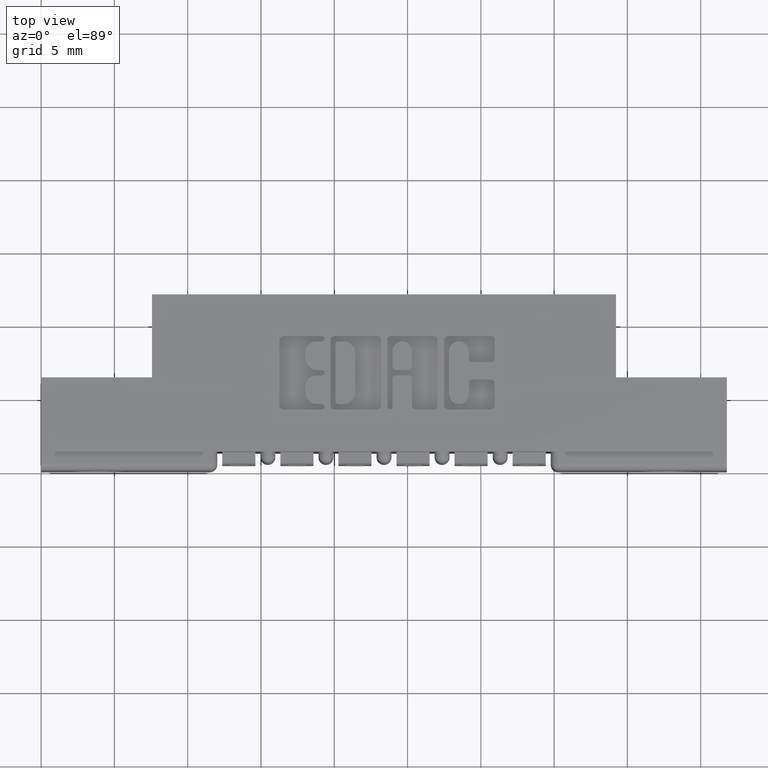
[diagram: clean part render]
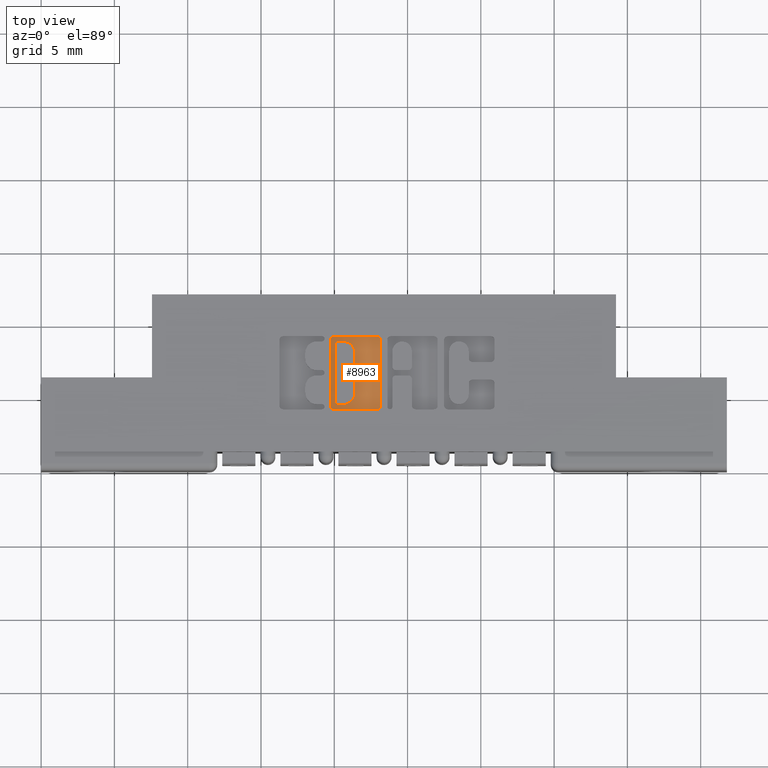
[diagram: same view with one face highlighted and labeled with its STEP entity id]
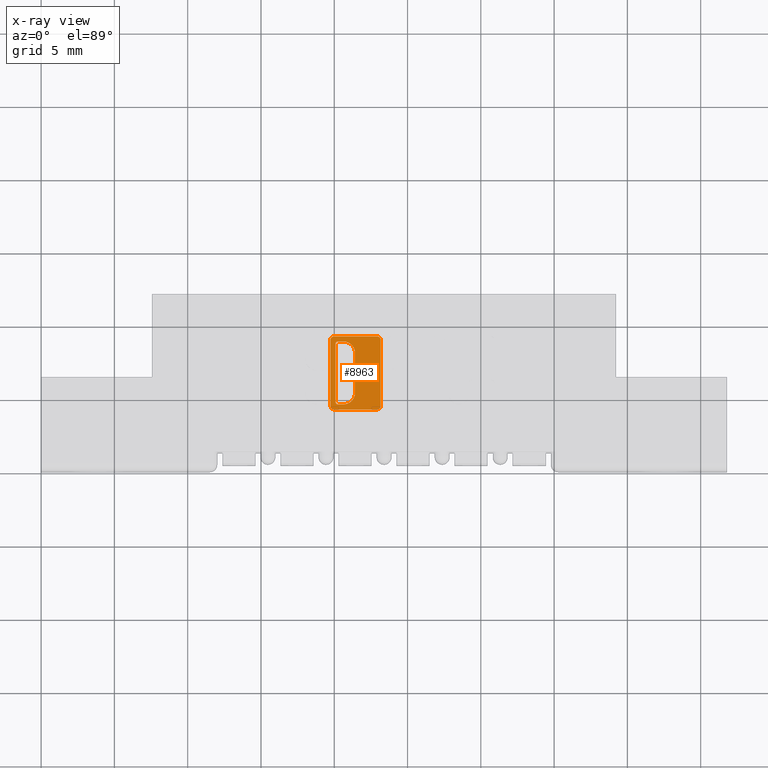
[diagram: x-ray of the same camera — body ghosted, the highlighted face saturated]
A machine part, top view. The second image highlights one B-rep face of the part: STEP entity #8963.
The next image is the same camera in x-ray: the body ghosted, the highlighted face saturated — about 0% of this face is hidden behind the body in this view.
In plain terms, the highlighted planar face has unit normal (0, 0, 1).
Its self-contained STEP definition (entity closure, byte-faithful):
#2 = DIRECTION ( 'NONE',  ( 1.000000000000000000, 0.0000000000000000000, 0.0000000000000000000 ) ) ;
#16 = CARTESIAN_POINT ( 'NONE',  ( 0.9124112885716693100, 0.3503410318342100000, -0.01000000000000000000 ) ) ;
#124 = CARTESIAN_POINT ( 'NONE',  ( 0.7906969780444990100, 0.3395437946100566300, -0.01000000000000000000 ) ) ;
#275 = VECTOR ( 'NONE', #2, 39.37007874015748100 ) ;
#326 = DIRECTION ( 'NONE',  ( 1.000000000000000000, 0.0000000000000000000, 0.0000000000000000000 ) ) ;
#403 = CARTESIAN_POINT ( 'NONE',  ( 0.0000000000000000000, 0.1775852362473141800, -0.01000000000000000000 ) ) ;
#615 = CARTESIAN_POINT ( 'NONE',  ( 0.0000000000000000000, 0.0000000000000000000, -0.01000000000000000000 ) ) ;
#718 = VECTOR ( 'NONE', #326, 39.37007874015748100 ) ;
#721 = CARTESIAN_POINT ( 'NONE',  ( 0.7906969780444990100, 0.0000000000000000000, -0.01000000000000000000 ) ) ;
#876 = CARTESIAN_POINT ( 'NONE',  ( 0.7769550397591695700, 0.0000000000000000000, -0.01000000000000000000 ) ) ;
#943 = LINE ( 'NONE', #5259, #9670 ) ;
#1005 = CARTESIAN_POINT ( 'NONE',  ( 0.8118006689826720000, 0.3150046191005524400, -0.01000000000000000000 ) ) ;
#1063 = DIRECTION ( 'NONE',  ( -0.0000000000000000000, 0.0000000000000000000, 1.000000000000000000 ) ) ;
#1186 = DIRECTION ( 'NONE',  ( -0.0000000000000000000, 0.0000000000000000000, 1.000000000000000000 ) ) ;
#1394 = VERTEX_POINT ( 'NONE', #6409 ) ;
#1452 = CARTESIAN_POINT ( 'NONE',  ( 0.9025956183678624000, 0.1736589681657899100, -0.01000000000000000000 ) ) ;
#1730 = DIRECTION ( 'NONE',  ( -0.0000000000000000000, 0.0000000000000000000, 1.000000000000000000 ) ) ;
#1762 = AXIS2_PLACEMENT_3D ( 'NONE', #615, #7387, #6460 ) ;
#1784 = CIRCLE ( 'NONE', #10209, 0.009815670203840902800 ) ;
#1856 = AXIS2_PLACEMENT_3D ( 'NONE', #4385, #6063, #6143 ) ;
#1870 = CARTESIAN_POINT ( 'NONE',  ( 0.9025956183678963700, 0.3601567020380510000, -0.01000000000000000000 ) ) ;
#2005 = ORIENTED_EDGE ( 'NONE', *, *, #7590, .T. ) ;
#2058 = CARTESIAN_POINT ( 'NONE',  ( 0.7975679471871667300, 0.3395437946100566300, -0.01000000000000000000 ) ) ;
#2303 = ORIENTED_EDGE ( 'NONE', *, *, #2328, .T. ) ;
#2305 = CIRCLE ( 'NONE', #7582, 0.009815670203806891800 ) ;
#2328 = EDGE_CURVE ( 'NONE', #3954, #4146, #1784, .T. ) ;
#2420 = EDGE_CURVE ( 'NONE', #5281, #7856, #2305, .T. ) ;
#2463 = CARTESIAN_POINT ( 'NONE',  ( 0.7867707099630104600, 0.3601567020380510000, -0.01000000000000000000 ) ) ;
#2471 = CIRCLE ( 'NONE', #1856, 0.03141014465217017300 ) ;
#2560 = ORIENTED_EDGE ( 'NONE', *, *, #2907, .T. ) ;
#2722 = CARTESIAN_POINT ( 'NONE',  ( 0.9124112885716693100, 0.0000000000000000000, -0.01000000000000000000 ) ) ;
#2766 = ORIENTED_EDGE ( 'NONE', *, *, #5186, .F. ) ;
#2779 = CARTESIAN_POINT ( 'NONE',  ( 0.8432108136348439600, 0.0000000000000000000, -0.01000000000000000000 ) ) ;
#2882 = CIRCLE ( 'NONE', #7380, 0.03141014465217194900 ) ;
#2907 = EDGE_CURVE ( 'NONE', #3097, #3075, #8331, .T. ) ;
#2975 = LINE ( 'NONE', #403, #8912 ) ;
#3075 = VERTEX_POINT ( 'NONE', #3686 ) ;
#3097 = VERTEX_POINT ( 'NONE', #10406 ) ;
#3201 = CARTESIAN_POINT ( 'NONE',  ( 0.8432108136348439600, 0.3150046191005524400, -0.01000000000000000000 ) ) ;
#3204 = VECTOR ( 'NONE', #10175, 39.37007874015748100 ) ;
#3316 = VERTEX_POINT ( 'NONE', #16 ) ;
#3479 = CARTESIAN_POINT ( 'NONE',  ( 0.7769550397591695700, 0.3503410318342100000, -0.01000000000000000000 ) ) ;
#3593 = DIRECTION ( 'NONE',  ( -1.000000000000000000, 0.0000000000000000000, 0.0000000000000000000 ) ) ;
#3610 = EDGE_LOOP ( 'NONE', ( #6470, #8269, #9111, #2303, #5554, #4100, #6910, #6388 ) ) ;
#3686 = CARTESIAN_POINT ( 'NONE',  ( 0.8118006689826782200, 0.3464147637527244000, -0.01000000000000000000 ) ) ;
#3892 = CARTESIAN_POINT ( 'NONE',  ( 0.9025956183678282000, 0.3503410318342098900, -0.01000000000000000000 ) ) ;
#3954 = VERTEX_POINT ( 'NONE', #2463 ) ;
#4100 = ORIENTED_EDGE ( 'NONE', *, *, #4194, .T. ) ;
#4144 = ORIENTED_EDGE ( 'NONE', *, *, #5036, .F. ) ;
#4146 = VERTEX_POINT ( 'NONE', #3479 ) ;
#4194 = EDGE_CURVE ( 'NONE', #8596, #9353, #8298, .T. ) ;
#4268 = VERTEX_POINT ( 'NONE', #124 ) ;
#4385 = CARTESIAN_POINT ( 'NONE',  ( 0.8118006689826737800, 0.2089953808994844400, -0.01000000000000000000 ) ) ;
#4417 = CIRCLE ( 'NONE', #4580, 0.006870969142663185300 ) ;
#4550 = LINE ( 'NONE', #2722, #3204 ) ;
#4580 = AXIS2_PLACEMENT_3D ( 'NONE', #10422, #7834, #5261 ) ;
#4779 = CARTESIAN_POINT ( 'NONE',  ( 0.7975679471871622800, 0.1775852362473141800, -0.01000000000000000000 ) ) ;
#4979 = EDGE_CURVE ( 'NONE', #9600, #3075, #2882, .T. ) ;
#5036 = EDGE_CURVE ( 'NONE', #9498, #10467, #2471, .T. ) ;
#5082 = DIRECTION ( 'NONE',  ( 1.000000000000000000, 0.0000000000000000000, 0.0000000000000000000 ) ) ;
#5186 = EDGE_CURVE ( 'NONE', #3097, #4268, #5398, .T. ) ;
#5215 = DIRECTION ( 'NONE',  ( 0.0000000000000000000, -1.000000000000000000, 0.0000000000000000000 ) ) ;
#5259 = CARTESIAN_POINT ( 'NONE',  ( 0.0000000000000000000, 0.3601567020380510000, -0.01000000000000000000 ) ) ;
#5261 = DIRECTION ( 'NONE',  ( 1.000000000000000000, 0.0000000000000000000, 0.0000000000000000000 ) ) ;
#5281 = VERTEX_POINT ( 'NONE', #5579 ) ;
#5398 = CIRCLE ( 'NONE', #6598, 0.006870969142667693000 ) ;
#5467 = VECTOR ( 'NONE', #5215, 39.37007874015748100 ) ;
#5474 = CARTESIAN_POINT ( 'NONE',  ( 0.7867707099629762700, 0.1638432979619831300, -0.01000000000000000000 ) ) ;
#5475 = CARTESIAN_POINT ( 'NONE',  ( 0.0000000000000000000, 0.1638432979619831300, -0.01000000000000000000 ) ) ;
#5554 = ORIENTED_EDGE ( 'NONE', *, *, #7524, .T. ) ;
#5579 = CARTESIAN_POINT ( 'NONE',  ( 0.9025956183678624000, 0.1638432979619831300, -0.01000000000000000000 ) ) ;
#5653 = PLANE ( 'NONE',  #1762 ) ;
#5990 = AXIS2_PLACEMENT_3D ( 'NONE', #3892, #1730, #5082 ) ;
#6063 = DIRECTION ( 'NONE',  ( -0.0000000000000000000, 0.0000000000000000000, 1.000000000000000000 ) ) ;
#6083 = EDGE_CURVE ( 'NONE', #9353, #5281, #6401, .T. ) ;
#6105 = DIRECTION ( 'NONE',  ( -0.0000000000000000000, 0.0000000000000000000, 1.000000000000000000 ) ) ;
#6111 = CARTESIAN_POINT ( 'NONE',  ( 0.7769550397591695700, 0.1736589681657899100, -0.01000000000000000000 ) ) ;
#6132 = CARTESIAN_POINT ( 'NONE',  ( 0.7867707099629762700, 0.1736589681657899100, -0.01000000000000000000 ) ) ;
#6143 = DIRECTION ( 'NONE',  ( 1.000000000000000000, 0.0000000000000000000, 0.0000000000000000000 ) ) ;
#6361 = LINE ( 'NONE', #2779, #5467 ) ;
#6388 = ORIENTED_EDGE ( 'NONE', *, *, #2420, .T. ) ;
#6401 = LINE ( 'NONE', #5475, #718 ) ;
#6409 = CARTESIAN_POINT ( 'NONE',  ( 0.7906969780444990100, 0.1844562053899774200, -0.01000000000000000000 ) ) ;
#6454 = DIRECTION ( 'NONE',  ( -0.0000000000000000000, 0.0000000000000000000, 1.000000000000000000 ) ) ;
#6460 = DIRECTION ( 'NONE',  ( 1.000000000000000000, 0.0000000000000000000, 0.0000000000000000000 ) ) ;
#6469 = ORIENTED_EDGE ( 'NONE', *, *, #9579, .T. ) ;
#6470 = ORIENTED_EDGE ( 'NONE', *, *, #7034, .T. ) ;
#6492 = CARTESIAN_POINT ( 'NONE',  ( 0.7867707099630104600, 0.3503410318342100000, -0.01000000000000000000 ) ) ;
#6598 = AXIS2_PLACEMENT_3D ( 'NONE', #2058, #1186, #9688 ) ;
#6623 = VERTEX_POINT ( 'NONE', #4779 ) ;
#6907 = CIRCLE ( 'NONE', #5990, 0.009815670203841039800 ) ;
#6910 = ORIENTED_EDGE ( 'NONE', *, *, #6083, .T. ) ;
#7013 = LINE ( 'NONE', #721, #8308 ) ;
#7034 = EDGE_CURVE ( 'NONE', #7856, #3316, #4550, .T. ) ;
#7151 = FACE_BOUND ( 'NONE', #7214, .T. ) ;
#7176 = LINE ( 'NONE', #876, #8601 ) ;
#7214 = EDGE_LOOP ( 'NONE', ( #2766, #2560, #9722, #2005, #4144, #8486, #8920, #6469 ) ) ;
#7380 = AXIS2_PLACEMENT_3D ( 'NONE', #1005, #6105, #8606 ) ;
#7382 = DIRECTION ( 'NONE',  ( 1.000000000000000000, 0.0000000000000000000, 0.0000000000000000000 ) ) ;
#7387 = DIRECTION ( 'NONE',  ( -0.0000000000000000000, 0.0000000000000000000, 1.000000000000000000 ) ) ;
#7524 = EDGE_CURVE ( 'NONE', #4146, #8596, #7176, .T. ) ;
#7582 = AXIS2_PLACEMENT_3D ( 'NONE', #1452, #8326, #7382 ) ;
#7590 = EDGE_CURVE ( 'NONE', #9600, #10467, #6361, .T. ) ;
#7743 = CARTESIAN_POINT ( 'NONE',  ( 0.8432108136348439600, 0.2089953808994844400, -0.01000000000000000000 ) ) ;
#7772 = EDGE_CURVE ( 'NONE', #1394, #6623, #4417, .T. ) ;
#7834 = DIRECTION ( 'NONE',  ( -0.0000000000000000000, 0.0000000000000000000, 1.000000000000000000 ) ) ;
#7856 = VERTEX_POINT ( 'NONE', #9582 ) ;
#8019 = VERTEX_POINT ( 'NONE', #1870 ) ;
#8097 = EDGE_CURVE ( 'NONE', #3316, #8019, #6907, .T. ) ;
#8219 = DIRECTION ( 'NONE',  ( 0.0000000000000000000, 1.000000000000000000, -0.0000000000000000000 ) ) ;
#8269 = ORIENTED_EDGE ( 'NONE', *, *, #8097, .T. ) ;
#8298 = CIRCLE ( 'NONE', #9151, 0.009815670203806754800 ) ;
#8308 = VECTOR ( 'NONE', #8219, 39.37007874015748100 ) ;
#8326 = DIRECTION ( 'NONE',  ( -0.0000000000000000000, 0.0000000000000000000, 1.000000000000000000 ) ) ;
#8331 = LINE ( 'NONE', #10149, #275 ) ;
#8486 = ORIENTED_EDGE ( 'NONE', *, *, #8781, .T. ) ;
#8596 = VERTEX_POINT ( 'NONE', #6111 ) ;
#8601 = VECTOR ( 'NONE', #9230, 39.37007874015748100 ) ;
#8606 = DIRECTION ( 'NONE',  ( 1.000000000000000000, 0.0000000000000000000, 0.0000000000000000000 ) ) ;
#8781 = EDGE_CURVE ( 'NONE', #9498, #6623, #2975, .T. ) ;
#8892 = CARTESIAN_POINT ( 'NONE',  ( 0.8118006689826737800, 0.1775852362473141800, -0.01000000000000000000 ) ) ;
#8912 = VECTOR ( 'NONE', #9693, 39.37007874015748100 ) ;
#8920 = ORIENTED_EDGE ( 'NONE', *, *, #7772, .F. ) ;
#8963 = ADVANCED_FACE ( 'NONE', ( #7151, #10711 ), #5653, .T. ) ;
#9111 = ORIENTED_EDGE ( 'NONE', *, *, #9159, .T. ) ;
#9151 = AXIS2_PLACEMENT_3D ( 'NONE', #6132, #1063, #10414 ) ;
#9159 = EDGE_CURVE ( 'NONE', #8019, #3954, #943, .T. ) ;
#9230 = DIRECTION ( 'NONE',  ( 0.0000000000000000000, -1.000000000000000000, 0.0000000000000000000 ) ) ;
#9353 = VERTEX_POINT ( 'NONE', #5474 ) ;
#9498 = VERTEX_POINT ( 'NONE', #8892 ) ;
#9579 = EDGE_CURVE ( 'NONE', #1394, #4268, #7013, .T. ) ;
#9582 = CARTESIAN_POINT ( 'NONE',  ( 0.9124112885716693100, 0.1736589681657899100, -0.01000000000000000000 ) ) ;
#9600 = VERTEX_POINT ( 'NONE', #3201 ) ;
#9670 = VECTOR ( 'NONE', #3593, 39.37007874015748100 ) ;
#9688 = DIRECTION ( 'NONE',  ( 1.000000000000000000, 0.0000000000000000000, 0.0000000000000000000 ) ) ;
#9693 = DIRECTION ( 'NONE',  ( -1.000000000000000000, 0.0000000000000000000, 0.0000000000000000000 ) ) ;
#9722 = ORIENTED_EDGE ( 'NONE', *, *, #4979, .F. ) ;
#10149 = CARTESIAN_POINT ( 'NONE',  ( 0.0000000000000000000, 0.3464147637527244000, -0.01000000000000000000 ) ) ;
#10175 = DIRECTION ( 'NONE',  ( 0.0000000000000000000, 1.000000000000000000, -0.0000000000000000000 ) ) ;
#10209 = AXIS2_PLACEMENT_3D ( 'NONE', #6492, #6454, #10627 ) ;
#10406 = CARTESIAN_POINT ( 'NONE',  ( 0.7975679471871667300, 0.3464147637527244000, -0.01000000000000000000 ) ) ;
#10414 = DIRECTION ( 'NONE',  ( 1.000000000000000000, 0.0000000000000000000, 0.0000000000000000000 ) ) ;
#10422 = CARTESIAN_POINT ( 'NONE',  ( 0.7975679471871622800, 0.1844562053899774200, -0.01000000000000000000 ) ) ;
#10467 = VERTEX_POINT ( 'NONE', #7743 ) ;
#10627 = DIRECTION ( 'NONE',  ( 1.000000000000000000, 0.0000000000000000000, 0.0000000000000000000 ) ) ;
#10711 = FACE_OUTER_BOUND ( 'NONE', #3610, .T. ) ;